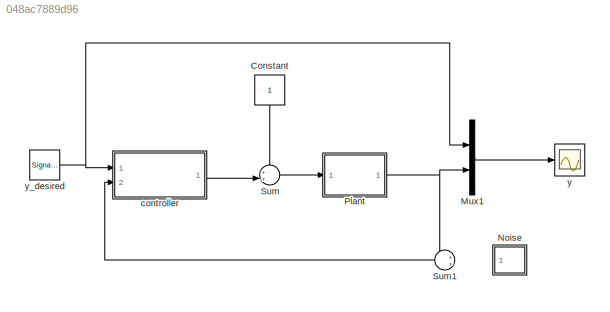
MODEL slx_048ac7889d96
KIND model
CONFIG InitFcn = param
BLOCK [Constant] Constant
BLOCK [Mux] Mux1
  DisplayOption = bar
  Inputs = 2
  Ports = [2, 1]
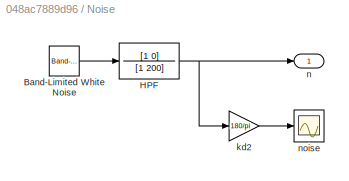
BLOCK [SubSystem] Noise
  FunctionWithSeparateData = off
  MaskHideContents = off
  MinAlgLoopOccurrences = off
  Opaque = off
  Ports = [0, 1]
  PropExecContextOutsideSubsystem = off
  RTWSystemCode = Auto
  RequestExecContextInheritance = off
BLOCK [Reference] Noise/Band-Limited White Noise  REF=simulink/Sources/Band-Limited
White Noise
  Cov = [0.0001]
  Ports = [0, 1]
  SourceBlock = simulink/Sources/Band-Limited\nWhite Noise
  SourceType = Band-Limited White Noise.
  Ts = P.Ts
  VectorParams1D = on
  seed = [23341]
BLOCK [TransferFcn] Noise/HPF
  Denominator = [1 200]
  Numerator = [1 0]
BLOCK [Gain] Noise/kd2
  Gain = 180/pi
  OutDataTypeStr = Inherit: Inherit via internal rule
  ParamDataTypeStr = Inherit: Inherit via internal rule
  SaturateOnIntegerOverflow = off
BLOCK [Outport] Noise/n
  IconDisplay = Port number
BLOCK [Scope] Noise/noise
  DataFormat = StructureWithTime
  Floating = off
  LimitDataPoints = off
  NumInputPorts = 1
  Ports = [1]
  SampleTime = 0
  SaveName = ScopeData2
  ShowLegends = off
  YMax = 8
  YMin = -7
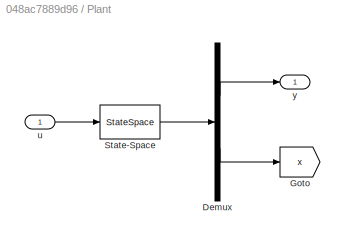
BLOCK [SubSystem] Plant
  FunctionWithSeparateData = off
  MaskHideContents = off
  MinAlgLoopOccurrences = off
  Opaque = off
  Ports = [1, 1]
  PropExecContextOutsideSubsystem = off
  RTWSystemCode = Auto
  RequestExecContextInheritance = off
BLOCK [Demux] Plant/Demux
  DisplayOption = bar
  Outputs = [1;2]
  Ports = [1, 2]
BLOCK [Goto] Plant/Goto
  GotoTag = x
  TagVisibility = global
BLOCK [StateSpace] Plant/State-Space
  A = AP.A
  B = AP.B
  C = [AP.C; eye(2)]
  D = [P.D; 0; 0]
  X0 = [0;0]
BLOCK [Inport] Plant/u
  IconDisplay = Port number
BLOCK [Outport] Plant/y
  IconDisplay = Port number
BLOCK [Sum] Sum
  IconShape = round
  InputSameDT = off
  Inputs = ++|
  OutDataTypeStr = Inherit: Inherit via internal rule
  Ports = [2, 1]
  SaturateOnIntegerOverflow = off
BLOCK [Sum] Sum1
  IconShape = round
  InputSameDT = off
  Inputs = ++|
  OutDataTypeStr = Inherit: Inherit via internal rule
  Ports = [2, 1]
  SaturateOnIntegerOverflow = off
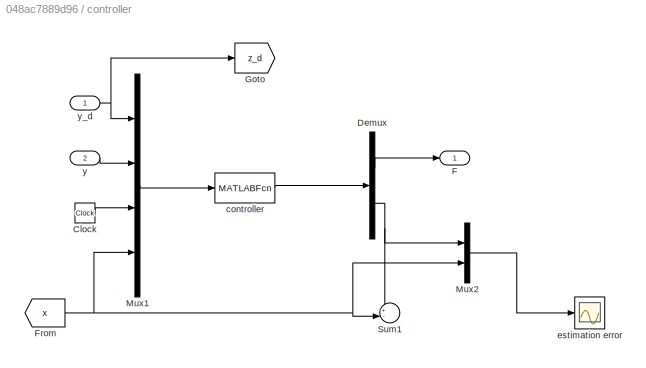
BLOCK [SubSystem] controller
  FunctionWithSeparateData = off
  MaskHideContents = off
  MinAlgLoopOccurrences = off
  Opaque = off
  Ports = [2, 1]
  PropExecContextOutsideSubsystem = off
  RTWSystemCode = Auto
  RequestExecContextInheritance = off
BLOCK [Clock] controller/Clock
BLOCK [Demux] controller/Demux
  DisplayOption = bar
  Outputs = [1;2]
  Ports = [1, 2]
BLOCK [Outport] controller/F
  IconDisplay = Port number
BLOCK [From] controller/From
  GotoTag = x
  TagVisibility = global
BLOCK [Goto] controller/Goto
  GotoTag = z_d
  TagVisibility = global
BLOCK [Mux] controller/Mux1
  DisplayOption = bar
  Ports = [4, 1]
BLOCK [Mux] controller/Mux2
  DisplayOption = bar
  Inputs = 2
  Ports = [2, 1]
BLOCK [Sum] controller/Sum1
  IconShape = round
  InputSameDT = off
  Inputs = +-|
  OutDataTypeStr = Inherit: Inherit via internal rule
  Ports = [2, 1]
  SaturateOnIntegerOverflow = off
BLOCK [MATLABFcn] controller/controller
  MATLABFcn = ctrl(u,P)
  OutputDimensions = 1+2
  Ports = [1, 1]
  SampleTime = P.Ts
BLOCK [Scope] controller/estimation error
  DataFormat = StructureWithTime
  Floating = off
  LimitDataPoints = off
  NumInputPorts = 1
  Ports = [1]
  SampleTime = 0
  ShowLegends = off
  TimeRange = 100
  YMax = 7
  YMin = -8
BLOCK [Inport] controller/y
  IconDisplay = Port number
  Port = 2
BLOCK [Inport] controller/y_d
  IconDisplay = Port number
BLOCK [Scope] y
  DataFormat = StructureWithTime
  Floating = off
  LimitDataPoints = off
  NumInputPorts = 1
  Ports = [1]
  SampleTime = 0
  SaveName = ScopeData1
  ShowLegends = off
  ZoomMode = yonly
BLOCK [SignalGenerator] y_desired
  Frequency = 0.02
  Ports = [0, 1]
  WaveForm = square
LINE Constant:1 -> Sum:1
LINE Mux1:1 -> y:1
LINE Noise/Band-Limited White Noise:1 -> Noise/HPF:1
NET Noise/HPF:1 -> Noise/kd2:1, Noise/n:1
LINE Noise/kd2:1 -> Noise/noise:1
LINE Plant/Demux:1 -> Plant/y:1
LINE Plant/Demux:2 -> Plant/Goto:1
LINE Plant/State-Space:1 -> Plant/Demux:1
LINE Plant/u:1 -> Plant/State-Space:1
NET Plant:1 -> Mux1:2, Sum1:1
LINE Sum1:1 -> controller:2
LINE Sum:1 -> Plant:1
LINE controller/Clock:1 -> controller/Mux1:3
LINE controller/Demux:1 -> controller/F:1
NET controller/Demux:2 -> controller/Mux2:1, controller/Sum1:1
NET controller/From:1 -> controller/Mux1:4, controller/Mux2:2, controller/Sum1:2
LINE controller/Mux1:1 -> controller/controller:1
LINE controller/Mux2:1 -> controller/estimation error:1
LINE controller/controller:1 -> controller/Demux:1
LINE controller/y:1 -> controller/Mux1:2
NET controller/y_d:1 -> controller/Goto:1, controller/Mux1:1
LINE controller:1 -> Sum:2
NET y_desired:1 -> Mux1:1, controller:1
note: NET lines group one-source signal fan-out (src -> all destinations, sorted); 1:1 wires keep LINE
